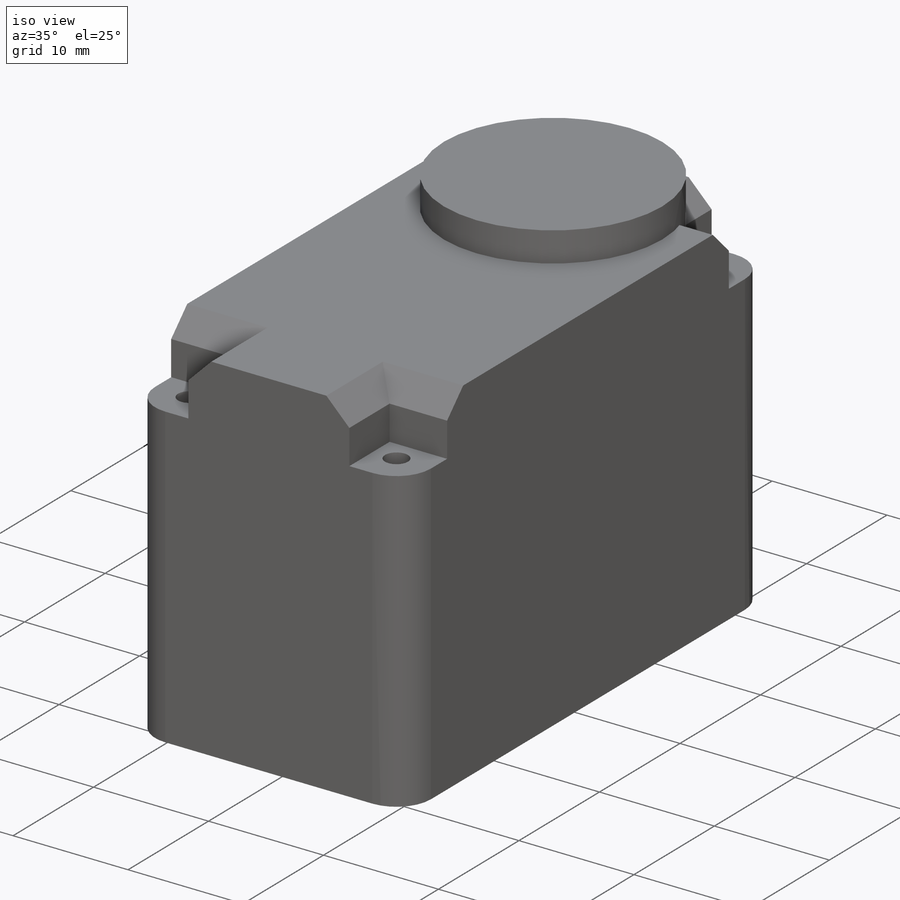
[diagram: iso view]
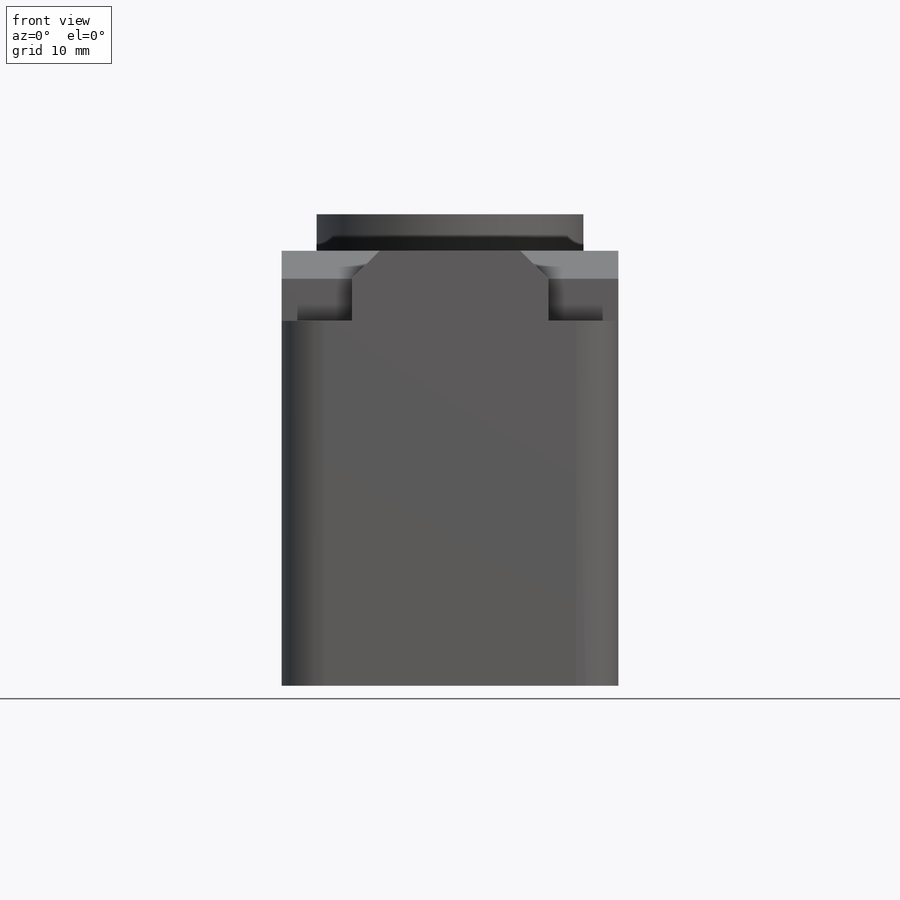
[diagram: front view]
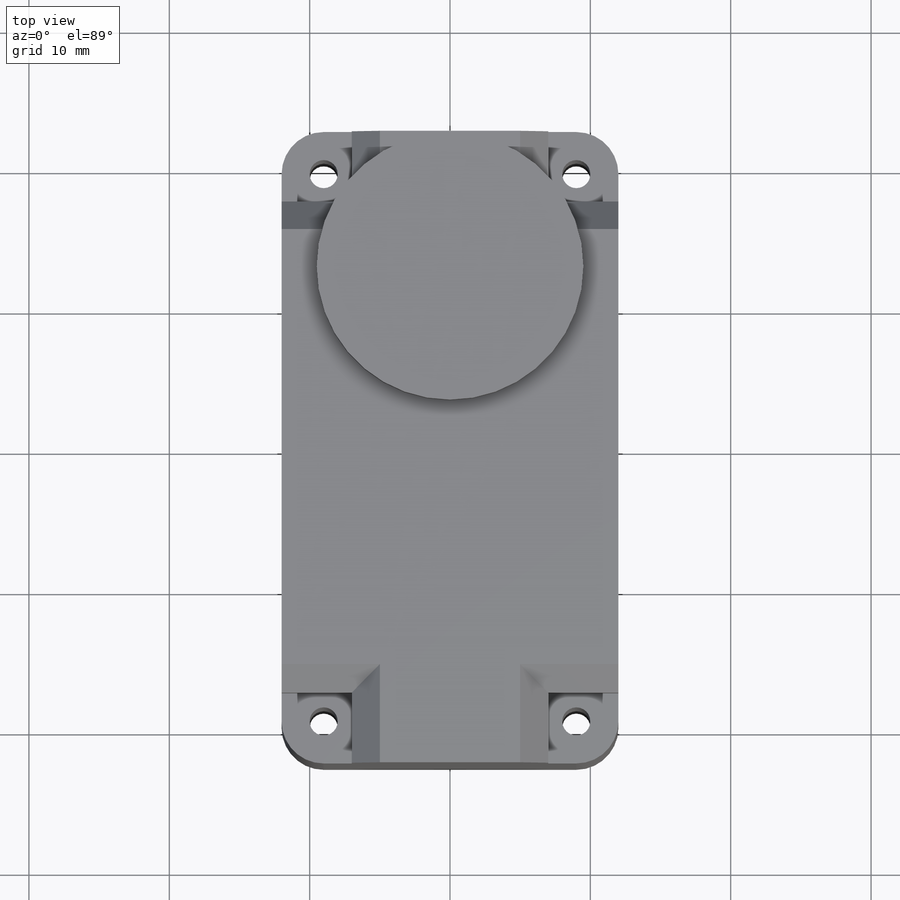
[diagram: top view]
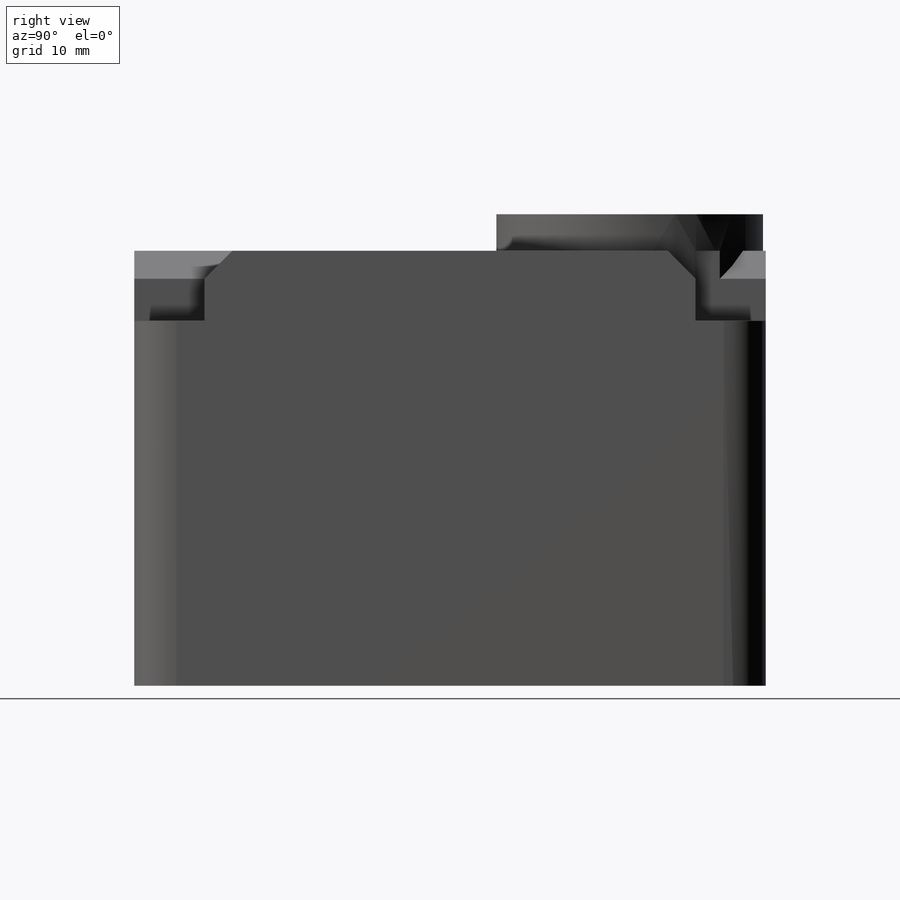
[diagram: right view]
SOLIDWORKS PART (.sldprt)
format: sldprt  version: not decoded by parser v0  size: 254,976 bytes
history: native  units: mm
features: sketch x5, extrude x2, material x1, cut_extrude x1, chamfer x1, hole x1 (+13 scaffold rows collapsed)
feature tree (24):
  scaffold x13  (default folders/planes/origin — collapsed)
  material  "Material <not specified>"
  sketch  "Sketch1"  dims[D3=3.0mm D1=24.0mm D2=45.0mm]
  extrude  "Boss-Extrude1"  Depth=31mm
  sketch  "Sketch2"  dims[D2=19.0mm D1=9.7mm]
  extrude  "Boss-Extrude2"  Depth=2.6mm
  sketch  "Sketch3"  dims[c1.D1=4.0mm c1.D2=20.0mm c2.D1=5.0mm]
  cut_extrude  "Cut-Extrude1"  Depth=5mm
  chamfer  "Chamfer1"  Distance=2mm Angle=45deg
  hole  "Ø2.0mm Dowel Hole2"  Diameter=2mm Depth=26mm
  sketch  "Sketch5"  dims[D1=9.0mm D2=3.0mm]
  sketch  "Sketch4"  dims[hole-wizard template sketch: 60 standard entries collapsed; hole parameters kept: c18.Thru Hole Depth=26.0mm]
decode coverage: 10 of 10 modeling features carry decoded parameters
note: ~ marks probable driven/reference dimensions
note: suppression state not decoded; provenance and decode notes live in map.json
